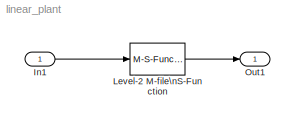
MODEL linear_plant
KIND model
BLOCK [Inport] In1
  IconDisplay = Port number
  OutDataType = fixdt(1, 16)
  OutScaling = 2^0
  SID = 2
BLOCK [M-S-Function] Level-2 M-file\nS-Function
  FunctionName = linear_plant_sfun
  Ports = [1, 1]
  SID = 1
BLOCK [Outport] Out1
  IconDisplay = Port number
  OutDataType = fixdt(1, 16)
  OutScaling = 2^0
  SID = 3
LINE In1:1 -> Level-2 M-file\nS-Function:1
LINE Level-2 M-file\nS-Function:1 -> Out1:1
